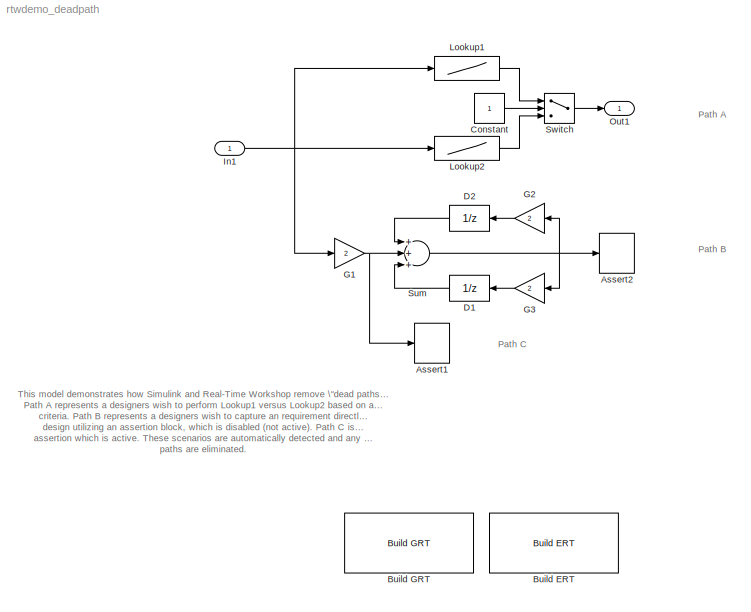
MODEL rtwdemo_deadpath
KIND model
BLOCK [Assertion] Assert1
BLOCK [Assertion] Assert2
  Enabled = off
BLOCK [Reference] Build ERT  REF=rtwdemowidgets/Build ERT
  Ports = []
  ShowPortLabels = on
  SourceBlock = rtwdemowidgets/Build ERT
  attrib_overrides = {}
BLOCK [Reference] Build GRT  REF=rtwdemowidgets/Build GRT
  Ports = []
  ShowPortLabels = on
  SourceBlock = rtwdemowidgets/Build GRT
  attrib_overrides = {}
BLOCK [Constant] Constant
BLOCK [UnitDelay] D1
BLOCK [UnitDelay] D2
BLOCK [Gain] G1
  Gain = 2
BLOCK [Gain] G2
  Gain = 2
BLOCK [Gain] G3
  Gain = 2
BLOCK [Inport] In1
  IconDisplay = Port number
  LatchInput = off
  Port = 1
BLOCK [Lookup] Lookup1
  DialogController = Simulink.DDGSource
  InputValues = [-5:5]
  OutputValues = tanh([-5:5])
BLOCK [Lookup] Lookup2
  DialogController = Simulink.DDGSource
  InputValues = [-5:5]
  OutputValues = cosh([-5:5])
BLOCK [Outport] Out1
  BusOutputAsStruct = off
  IconDisplay = Port number
BLOCK [Sum] Sum
  InputSameDT = off
  Inputs = +++
  OutDataTypeMode = Inherit via internal rule
  Ports = [3, 1]
BLOCK [Switch] Switch
  InputSameDT = off
ANNOTATION (root): Path A
ANNOTATION (root): Path B
ANNOTATION (root): Path C
ANNOTATION (root): This model demonstrates how Simulink and Real-Time Workshop remove \"dead paths\" of the model.\nPath A represents a designers wish to perform Lookup1 versus Lookup2 based on a static\ncriteria. Path B represents a designers wish to capture an requirement directly into the\ndesign utilizing an assertion block, which is disabled (not active). Path C is another\nassertion which is active. These scen...<+75ch>
LINE Constant:1 -> Switch:2
LINE D1:1 -> Sum:3
LINE D2:1 -> Sum:1
NET G1:1 -> Assert1:1, Sum:2
LINE G2:1 -> D2:1
LINE G3:1 -> D1:1
NET In1:1 -> G1:1, Lookup1:1, Lookup2:1
LINE Lookup1:1 -> Switch:1
LINE Lookup2:1 -> Switch:3
NET Sum:1 -> Assert2:1, G2:1, G3:1
LINE Switch:1 -> Out1:1
note: NET lines group one-source signal fan-out (src -> all destinations, sorted); 1:1 wires keep LINE
